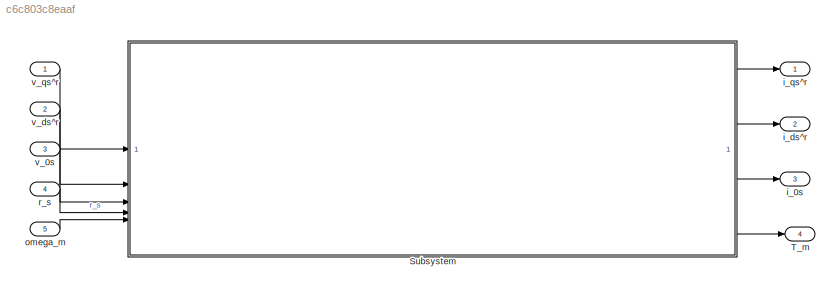
MODEL slx_c6c803c8eaaf
KIND model
CONFIG AbsTol = auto
CONFIG EnableMultiTasking = off
CONFIG FixedStep = auto
CONFIG MaxStep = auto
CONFIG MinStep = auto
CONFIG RelTol = 1e-3
CONFIG SampleTimeConstraint = Unconstrained
CONFIG SolverName = VariableStepAuto
CONFIG StartTime = 0.0
CONFIG StopTime = 10.0
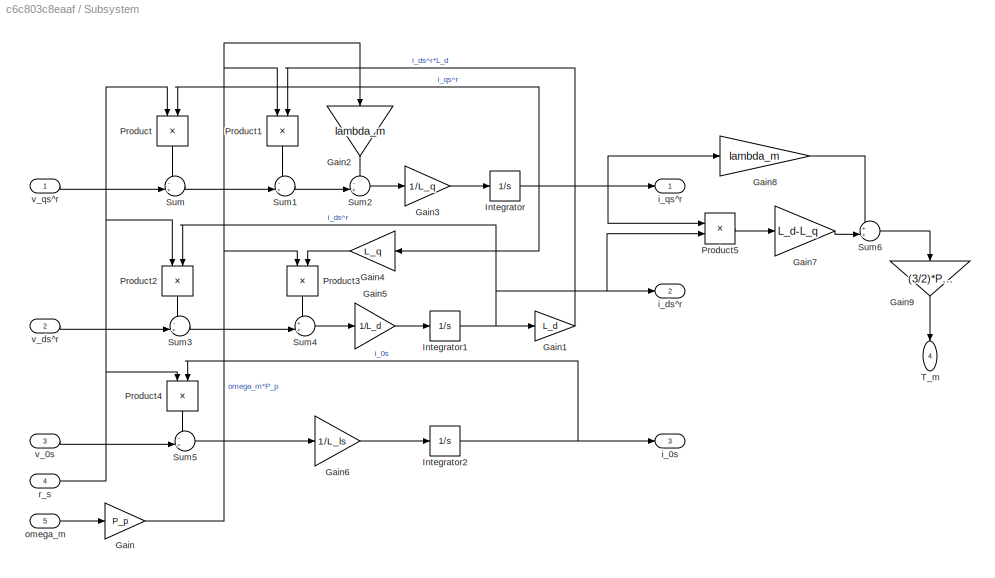
BLOCK [SubSystem] Subsystem
BLOCK [Gain] Subsystem/Gain
  Gain = P_p
BLOCK [Gain] Subsystem/Gain1
  Gain = L_d
BLOCK [Gain] Subsystem/Gain2
  Gain = lambda_m
  NameLocation = left
BLOCK [Gain] Subsystem/Gain3
  Gain = 1/L_q
BLOCK [Gain] Subsystem/Gain4
  Gain = L_q
  NameLocation = top
BLOCK [Gain] Subsystem/Gain5
  Gain = 1/L_d
BLOCK [Gain] Subsystem/Gain6
  Gain = 1/L_ls
BLOCK [Gain] Subsystem/Gain7
  Gain = L_d-L_q
BLOCK [Gain] Subsystem/Gain8
  Gain = lambda_m
BLOCK [Gain] Subsystem/Gain9
  Gain = (3/2)*P_p
  NameLocation = left
BLOCK [Integrator] Subsystem/Integrator
BLOCK [Integrator] Subsystem/Integrator1
BLOCK [Integrator] Subsystem/Integrator2
BLOCK [Product] Subsystem/Product
  NameLocation = left
BLOCK [Product] Subsystem/Product1
  NameLocation = left
BLOCK [Product] Subsystem/Product2
  NameLocation = left
BLOCK [Product] Subsystem/Product3
  NameLocation = left
BLOCK [Product] Subsystem/Product4
  NameLocation = left
BLOCK [Product] Subsystem/Product5
BLOCK [Sum] Subsystem/Sum
  Inputs = -+|
BLOCK [Sum] Subsystem/Sum1
  Inputs = -+|
BLOCK [Sum] Subsystem/Sum2
  Inputs = -+|
BLOCK [Sum] Subsystem/Sum3
  Inputs = -+|
BLOCK [Sum] Subsystem/Sum4
  Inputs = ++|
BLOCK [Sum] Subsystem/Sum5
  Inputs = -+|
BLOCK [Sum] Subsystem/Sum6
  Inputs = ++|
BLOCK [Outport] Subsystem/T_m
  NameLocation = left
  Port = 4
BLOCK [Outport] Subsystem/i_0s
  Port = 3
BLOCK [Outport] Subsystem/i_ds^r
  Port = 2
BLOCK [Outport] Subsystem/i_qs^r
BLOCK [Inport] Subsystem/omega_m
  Port = 5
BLOCK [Inport] Subsystem/r_s
  Port = 4
BLOCK [Inport] Subsystem/v_0s
  Port = 3
BLOCK [Inport] Subsystem/v_ds^r
  Port = 2
BLOCK [Inport] Subsystem/v_qs^r
BLOCK [Outport] T_m
  Port = 4
BLOCK [Outport] i_0s
  Port = 3
BLOCK [Outport] i_ds^r
  Port = 2
BLOCK [Outport] i_qs^r
BLOCK [Inport] omega_m
  Port = 5
BLOCK [Inport] r_s
  Port = 4
BLOCK [Inport] v_0s
  Port = 3
BLOCK [Inport] v_ds^r
  Port = 2
BLOCK [Inport] v_qs^r
LINE Subsystem/Gain1:1 -> Subsystem/Product1:2
LINE Subsystem/Gain2:1 -> Subsystem/Sum2:1
LINE Subsystem/Gain3:1 -> Subsystem/Integrator:1
LINE Subsystem/Gain4:1 -> Subsystem/Product3:2
LINE Subsystem/Gain5:1 -> Subsystem/Integrator1:1
LINE Subsystem/Gain6:1 -> Subsystem/Integrator2:1
LINE Subsystem/Gain7:1 -> Subsystem/Sum6:2
LINE Subsystem/Gain8:1 -> Subsystem/Sum6:1
LINE Subsystem/Gain9:1 -> Subsystem/T_m:1
NET Subsystem/Gain:1 -> Subsystem/Gain2:1, Subsystem/Product1:1, Subsystem/Product3:1
NET Subsystem/Integrator1:1 -> Subsystem/Gain1:1, Subsystem/Product2:2, Subsystem/Product5:2, Subsystem/i_ds^r:1
NET Subsystem/Integrator2:1 -> Subsystem/Product4:2, Subsystem/i_0s:1
NET Subsystem/Integrator:1 -> Subsystem/Gain4:1, Subsystem/Gain8:1, Subsystem/Product5:1, Subsystem/Product:2, Subsystem/i_qs^r:1
LINE Subsystem/Product1:1 -> Subsystem/Sum1:1
LINE Subsystem/Product2:1 -> Subsystem/Sum3:1
LINE Subsystem/Product3:1 -> Subsystem/Sum4:1
LINE Subsystem/Product4:1 -> Subsystem/Sum5:1
LINE Subsystem/Product5:1 -> Subsystem/Gain7:1
LINE Subsystem/Product:1 -> Subsystem/Sum:1
LINE Subsystem/Sum1:1 -> Subsystem/Sum2:2
LINE Subsystem/Sum2:1 -> Subsystem/Gain3:1
LINE Subsystem/Sum3:1 -> Subsystem/Sum4:2
LINE Subsystem/Sum4:1 -> Subsystem/Gain5:1
LINE Subsystem/Sum5:1 -> Subsystem/Gain6:1
LINE Subsystem/Sum6:1 -> Subsystem/Gain9:1
LINE Subsystem/Sum:1 -> Subsystem/Sum1:2
LINE Subsystem/omega_m:1 -> Subsystem/Gain:1
NET Subsystem/r_s:1 -> Subsystem/Product2:1, Subsystem/Product4:1, Subsystem/Product:1
LINE Subsystem/v_0s:1 -> Subsystem/Sum5:2
LINE Subsystem/v_ds^r:1 -> Subsystem/Sum3:2
LINE Subsystem/v_qs^r:1 -> Subsystem/Sum:2
LINE Subsystem:1 -> i_qs^r:1
LINE Subsystem:2 -> i_ds^r:1
LINE Subsystem:3 -> i_0s:1
LINE Subsystem:4 -> T_m:1
LINE omega_m:1 -> Subsystem:5
LINE r_s:1 -> Subsystem:4
LINE v_0s:1 -> Subsystem:3
LINE v_ds^r:1 -> Subsystem:2
LINE v_qs^r:1 -> Subsystem:1
note: NET lines group one-source signal fan-out (src -> all destinations, sorted); 1:1 wires keep LINE
